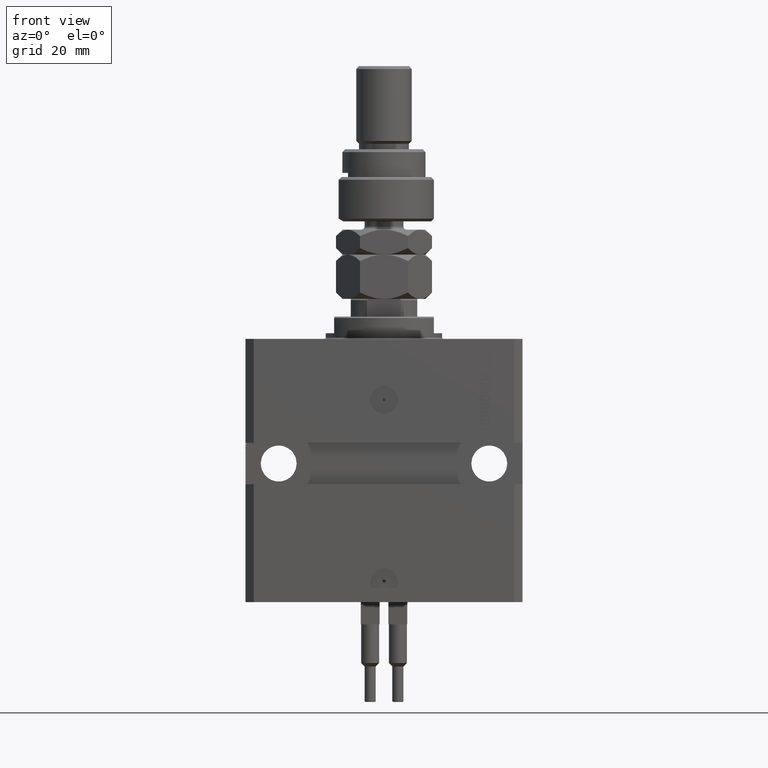
[diagram: clean part render]
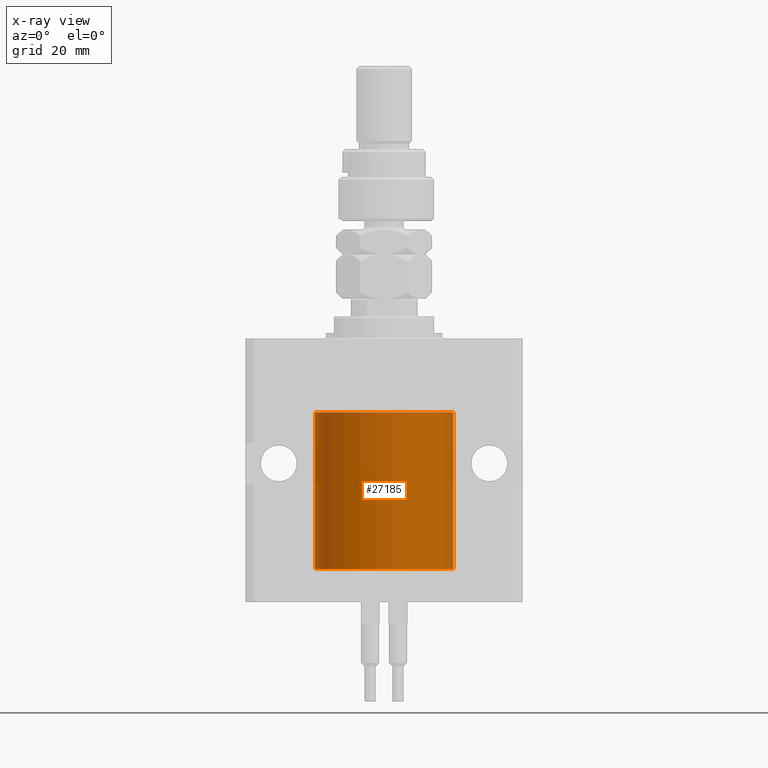
[diagram: x-ray — body ghosted, one internal face saturated and labeled with its STEP entity id]
A machine part, front view, then the same camera in x-ray: the body is ghosted and one INTERNAL B-rep face — a face not visible from any outside direction — is saturated and labeled: STEP entity #27185.
In plain terms, the highlighted cylindrical surface (partial cylindrical patch) has radius 25 mm, axis along (0, 0, 1).
Its self-contained STEP definition (entity closure, byte-faithful):
#550 = CARTESIAN_POINT ( 'NONE',  ( -24.99218282981962247, -0.6251379207535847637, -80.33567564710916997 ) ) ;
#721 = DIRECTION ( 'NONE',  ( -0.000000000000000000, -0.000000000000000000, 1.000000000000000000 ) ) ;
#1071 = VECTOR ( 'NONE', #45839, 1000.000000000000000 ) ;
#1126 = LINE ( 'NONE', #17113, #22054 ) ;
#1285 = CARTESIAN_POINT ( 'NONE',  ( 25.00000000000000000, 0.000000000000000000, -83.10000000000000853 ) ) ;
#1573 = EDGE_CURVE ( 'NONE', #4093, #47483, #1126, .T. ) ;
#2332 = CARTESIAN_POINT ( 'NONE',  ( -25.00000000000000000, 3.061616997868383043E-15, -83.10000000000000853 ) ) ;
#3845 = AXIS2_PLACEMENT_3D ( 'NONE', #18593, #26962, #46915 ) ;
#4093 = VERTEX_POINT ( 'NONE', #29033 ) ;
#4140 = CARTESIAN_POINT ( 'NONE',  ( 25.00000000000000000, 0.000000000000000000, -83.10000000000000853 ) ) ;
#4446 = CARTESIAN_POINT ( 'NONE',  ( 25.00000000000000000, -2.424731304940744339E-15, -81.12500000000000000 ) ) ;
#4490 = CARTESIAN_POINT ( 'NONE',  ( -24.99813644420120795, -0.3263088753891781324, -81.05741197928196584 ) ) ;
#4664 = LINE ( 'NONE', #4140, #25365 ) ;
#5332 = DIRECTION ( 'NONE',  ( -0.000000000000000000, -0.000000000000000000, 1.000000000000000000 ) ) ;
#6244 = VERTEX_POINT ( 'NONE', #19976 ) ;
#6845 = ORIENTED_EDGE ( 'NONE', *, *, #48566, .F. ) ;
#8177 = CARTESIAN_POINT ( 'NONE',  ( -24.99218973898648599, -0.6248616403601170433, -80.66537183352545526 ) ) ;
#9318 = CARTESIAN_POINT ( 'NONE',  ( 25.00000000000008171, 3.486950403907965962E-13, -79.87499999999673150 ) ) ;
#9765 = VECTOR ( 'NONE', #11221, 1000.000000000000000 ) ;
#10165 = DIRECTION ( 'NONE',  ( 1.000000000000000000, 0.000000000000000000, 0.000000000000000000 ) ) ;
#10607 = ORIENTED_EDGE ( 'NONE', *, *, #49319, .T. ) ;
#11221 = DIRECTION ( 'NONE',  ( -0.000000000000000000, -0.000000000000000000, 1.000000000000000000 ) ) ;
#11757 = DIRECTION ( 'NONE',  ( -0.000000000000000000, -0.000000000000000000, 1.000000000000000000 ) ) ;
#12515 = CARTESIAN_POINT ( 'NONE',  ( -25.00000000000000000, 3.061616997868383043E-15, -26.60000000000000142 ) ) ;
#12612 = CARTESIAN_POINT ( 'NONE',  ( -25.00000000000000000, -2.172643007029407462E-14, -79.87500000000000000 ) ) ;
#14028 = CARTESIAN_POINT ( 'NONE',  ( 24.99218627891525912, -0.6250000000000438538, -80.50000000000000000 ) ) ;
#14268 = CARTESIAN_POINT ( 'NONE',  ( 24.99813432839964733, -0.3264764365875494345, -79.94265997024152171 ) ) ;
#14730 = VERTEX_POINT ( 'NONE', #29516 ) ;
#16275 = CARTESIAN_POINT ( 'NONE',  ( -24.99999999999999645, -0.1631302912503605484, -81.12500000000012790 ) ) ;
#16792 = CARTESIAN_POINT ( 'NONE',  ( -24.99812796309119634, -0.3269516851027545745, -79.94290468877019862 ) ) ;
#17113 = CARTESIAN_POINT ( 'NONE',  ( -25.00000000000000000, 3.061616997868383043E-15, -83.10000000000000853 ) ) ;
#18459 = CARTESIAN_POINT ( 'NONE',  ( 24.99405221541606892, -0.5573590499560032718, -80.82645638849994896 ) ) ;
#18593 = CARTESIAN_POINT ( 'NONE',  ( 0.000000000000000000, 0.000000000000000000, -83.10000000000000853 ) ) ;
#18762 = CARTESIAN_POINT ( 'NONE',  ( 25.00000000000008171, 3.486950403907965962E-13, -79.87499999999673150 ) ) ;
#18814 = CARTESIAN_POINT ( 'NONE',  ( 25.00000000000000000, 0.000000000000000000, -83.10000000000000853 ) ) ;
#19976 = CARTESIAN_POINT ( 'NONE',  ( -25.00000000000008171, 3.517566579358498221E-13, -81.12500000000328271 ) ) ;
#20398 = ORIENTED_EDGE ( 'NONE', *, *, #30000, .T. ) ;
#20772 = CARTESIAN_POINT ( 'NONE',  ( 25.00000000000000000, 0.000000000000000000, -26.60000000000000142 ) ) ;
#21075 = CARTESIAN_POINT ( 'NONE',  ( 24.99405709967502887, -0.5571503051635591230, -80.17319989309319794 ) ) ;
#21858 = CARTESIAN_POINT ( 'NONE',  ( 25.00000000000000000, -0.1650629246255838900, -81.12500000000000000 ) ) ;
#22054 = VECTOR ( 'NONE', #5332, 1000.000000000000000 ) ;
#22628 = B_SPLINE_CURVE_WITH_KNOTS ( 'NONE', 3,
 ( #9318, #49933, #14268, #21075, #25263, #29194 ),
 .UNSPECIFIED., .F., .F.,
 ( 4, 2, 4 ),
 ( 0.001954111766881289937, 0.002442787801636856371, 0.002931463836392422806 ),
 .UNSPECIFIED. ) ;
#23776 = DIRECTION ( 'NONE',  ( 1.000000000000000000, 0.000000000000000000, 0.000000000000000000 ) ) ;
#24119 = CARTESIAN_POINT ( 'NONE',  ( -25.00000000000000355, -0.1651503688830781857, -79.87500000000000000 ) ) ;
#25263 = CARTESIAN_POINT ( 'NONE',  ( 24.99218627891525912, -0.6250000000000401901, -80.33504253076530688 ) ) ;
#25283 = AXIS2_PLACEMENT_3D ( 'NONE', #44244, #11757, #23776 ) ;
#25365 = VECTOR ( 'NONE', #721, 1000.000000000000000 ) ;
#26962 = DIRECTION ( 'NONE',  ( 0.000000000000000000, 0.000000000000000000, 1.000000000000000000 ) ) ;
#27185 = ADVANCED_FACE ( 'NONE', ( #40032 ), #44753, .F. ) ;
#28872 = EDGE_CURVE ( 'NONE', #47557, #48896, #4664, .T. ) ;
#29033 = CARTESIAN_POINT ( 'NONE',  ( -25.00000000000000000, -2.172643007029407462E-14, -79.87500000000000000 ) ) ;
#29194 = CARTESIAN_POINT ( 'NONE',  ( 24.99218627891525912, -0.6250000000000438538, -80.50000000000000000 ) ) ;
#29516 = CARTESIAN_POINT ( 'NONE',  ( 24.99218627891525912, -0.6250000000000438538, -80.50000000000000000 ) ) ;
#30000 = EDGE_CURVE ( 'NONE', #47557, #14730, #22628, .T. ) ;
#30071 = LINE ( 'NONE', #2332, #1071 ) ;
#31190 = ORIENTED_EDGE ( 'NONE', *, *, #42767, .T. ) ;
#31305 = ORIENTED_EDGE ( 'NONE', *, *, #33634, .T. ) ;
#31949 = ORIENTED_EDGE ( 'NONE', *, *, #28872, .F. ) ;
#33097 = AXIS2_PLACEMENT_3D ( 'NONE', #38185, #42654, #10165 ) ;
#33634 = EDGE_CURVE ( 'NONE', #47483, #48896, #41470, .T. ) ;
#34425 = CARTESIAN_POINT ( 'NONE',  ( 25.00000000000000000, -2.424731304940744339E-15, -81.12500000000000000 ) ) ;
#36425 = CARTESIAN_POINT ( 'NONE',  ( -24.99406145684571001, -0.5569515746258932865, -80.82709408482347158 ) ) ;
#36618 = CARTESIAN_POINT ( 'NONE',  ( 24.99813006673834792, -0.3267849812101329965, -81.05716645647035534 ) ) ;
#37782 = CARTESIAN_POINT ( 'NONE',  ( -25.00000000000000000, 3.061616997868383043E-15, -83.10000000000000853 ) ) ;
#37826 = B_SPLINE_CURVE_WITH_KNOTS ( 'NONE', 3,
 ( #44077, #16275, #4490, #36425, #8177, #550, #39870, #16792, #24119, #12612 ),
 .UNSPECIFIED., .F., .F.,
 ( 4, 2, 2, 2, 4 ),
 ( 0.001954111766881344581, 0.002442529193076335009, 0.002930946619271325871, 0.003419364045466316733, 0.003907781471661307161 ),
 .UNSPECIFIED. ) ;
#38185 = CARTESIAN_POINT ( 'NONE',  ( 0.000000000000000000, 0.000000000000000000, -26.60000000000000142 ) ) ;
#39870 = CARTESIAN_POINT ( 'NONE',  ( -24.99404783808660824, -0.5575587241817657747, -80.17383921254298684 ) ) ;
#40032 = FACE_OUTER_BOUND ( 'NONE', #47366, .T. ) ;
#40078 = VERTEX_POINT ( 'NONE', #37782 ) ;
#41470 = CIRCLE ( 'NONE', #33097, 25.00000000000000000 ) ;
#41804 = CARTESIAN_POINT ( 'NONE',  ( 24.99218627891525202, -0.6250000000000475175, -80.66478287743706233 ) ) ;
#42194 = ORIENTED_EDGE ( 'NONE', *, *, #1573, .T. ) ;
#42654 = DIRECTION ( 'NONE',  ( 0.000000000000000000, 0.000000000000000000, 1.000000000000000000 ) ) ;
#42665 = VERTEX_POINT ( 'NONE', #1285 ) ;
#42767 = EDGE_CURVE ( 'NONE', #40078, #6244, #30071, .T. ) ;
#43242 = ORIENTED_EDGE ( 'NONE', *, *, #50450, .F. ) ;
#44077 = CARTESIAN_POINT ( 'NONE',  ( -25.00000000000008171, 3.517566579358498221E-13, -81.12500000000328271 ) ) ;
#44203 = ORIENTED_EDGE ( 'NONE', *, *, #48799, .T. ) ;
#44244 = CARTESIAN_POINT ( 'NONE',  ( 0.000000000000000000, 0.000000000000000000, -83.10000000000000853 ) ) ;
#44753 = CYLINDRICAL_SURFACE ( 'NONE', #25283, 25.00000000000000000 ) ;
#45839 = DIRECTION ( 'NONE',  ( -0.000000000000000000, -0.000000000000000000, 1.000000000000000000 ) ) ;
#46701 = B_SPLINE_CURVE_WITH_KNOTS ( 'NONE', 3,
 ( #14028, #41804, #18459, #36618, #21858, #34425 ),
 .UNSPECIFIED., .F., .F.,
 ( 4, 2, 4 ),
 ( 0.002931463836392422806, 0.003419622654026862815, 0.003907781471661302825 ),
 .UNSPECIFIED. ) ;
#46915 = DIRECTION ( 'NONE',  ( 1.000000000000000000, 0.000000000000000000, 0.000000000000000000 ) ) ;
#47098 = VERTEX_POINT ( 'NONE', #4446 ) ;
#47128 = LINE ( 'NONE', #18814, #9765 ) ;
#47366 = EDGE_LOOP ( 'NONE', ( #6845, #31190, #10607, #42194, #31305, #31949, #20398, #44203, #43242 ) ) ;
#47483 = VERTEX_POINT ( 'NONE', #12515 ) ;
#47557 = VERTEX_POINT ( 'NONE', #18762 ) ;
#48187 = CIRCLE ( 'NONE', #3845, 25.00000000000000000 ) ;
#48566 = EDGE_CURVE ( 'NONE', #40078, #42665, #48187, .T. ) ;
#48799 = EDGE_CURVE ( 'NONE', #14730, #47098, #46701, .T. ) ;
#48896 = VERTEX_POINT ( 'NONE', #20772 ) ;
#49319 = EDGE_CURVE ( 'NONE', #6244, #4093, #37826, .T. ) ;
#49933 = CARTESIAN_POINT ( 'NONE',  ( 25.00000000000000000, -0.1632166659117597896, -79.87499999999984368 ) ) ;
#50450 = EDGE_CURVE ( 'NONE', #42665, #47098, #47128, .T. ) ;